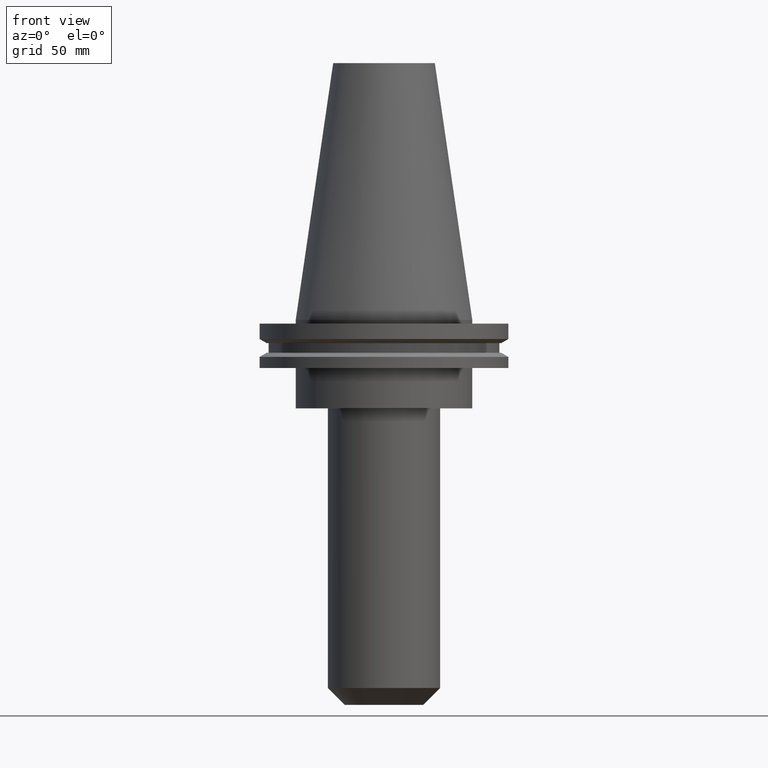
[diagram: clean part render]
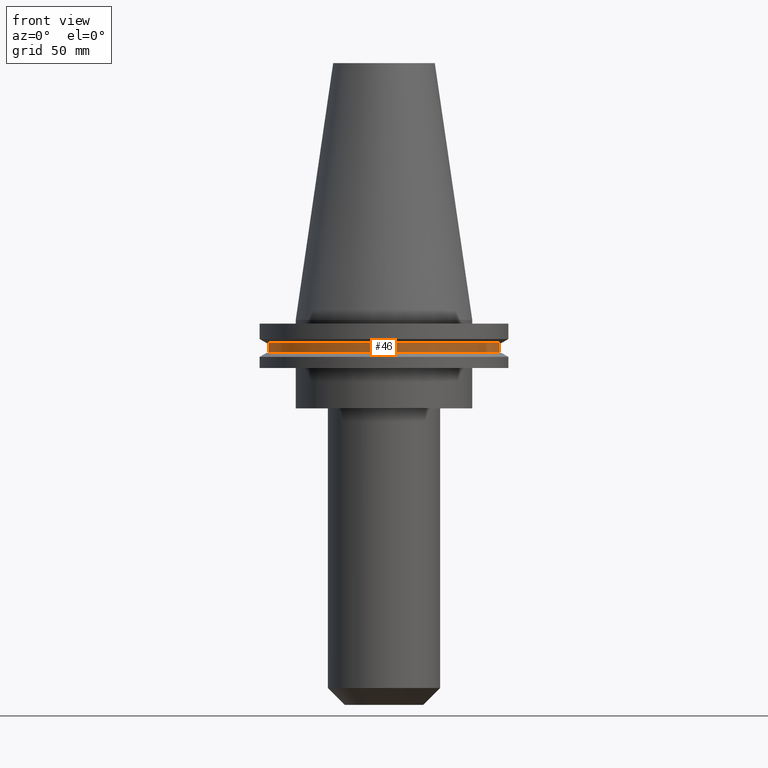
[diagram: same view with one face highlighted and labeled with its STEP entity id]
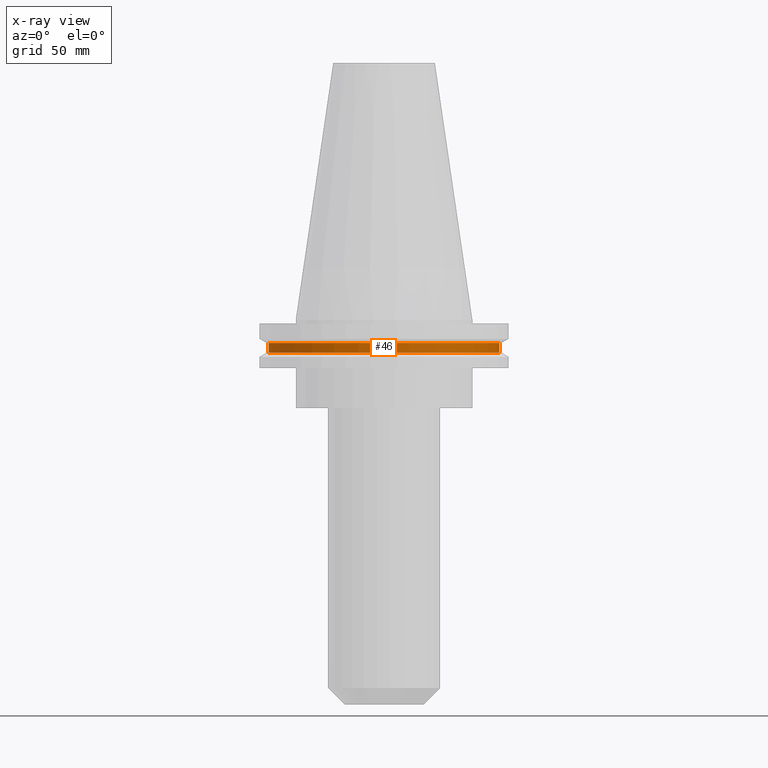
[diagram: x-ray of the same camera — body ghosted, the highlighted face saturated]
A machine part, front view. The second image highlights one B-rep face of the part: STEP entity #46.
The next image is the same camera in x-ray: the body ghosted, the highlighted face saturated — about 0% of this face is hidden behind the body in this view.
In plain terms, the highlighted cylindrical surface (partial cylindrical patch) has radius 45.645 mm, axis along (-0, -0, 1).
Its self-contained STEP definition (entity closure, byte-faithful):
#14 = EDGE_CURVE ( 'NONE', #303, #104, #426, .T. ) ;
#16 = CARTESIAN_POINT ( 'NONE',  ( 45.64500000000000313, 0.000000000000000000, 101.5999999999999943 ) ) ;
#42 = VERTEX_POINT ( 'NONE', #663 ) ;
#46 = ADVANCED_FACE ( 'NONE', ( #328 ), #671, .T. ) ;
#58 = CARTESIAN_POINT ( 'NONE',  ( 0.000000000000000000, 0.000000000000000000, -13.05499999999999794 ) ) ;
#76 = DIRECTION ( 'NONE',  ( -0.000000000000000000, -0.000000000000000000, 1.000000000000000000 ) ) ;
#104 = VERTEX_POINT ( 'NONE', #122 ) ;
#120 = VECTOR ( 'NONE', #598, 1000.000000000000000 ) ;
#122 = CARTESIAN_POINT ( 'NONE',  ( 45.64500000000000313, 0.000000000000000000, -9.204999999999991189 ) ) ;
#188 = DIRECTION ( 'NONE',  ( 1.000000000000000000, 0.000000000000000000, 0.000000000000000000 ) ) ;
#271 = ORIENTED_EDGE ( 'NONE', *, *, #14, .F. ) ;
#295 = VECTOR ( 'NONE', #809, 1000.000000000000000 ) ;
#303 = VERTEX_POINT ( 'NONE', #824 ) ;
#306 = ORIENTED_EDGE ( 'NONE', *, *, #499, .T. ) ;
#328 = FACE_OUTER_BOUND ( 'NONE', #763, .T. ) ;
#386 = CARTESIAN_POINT ( 'NONE',  ( 0.000000000000000000, 0.000000000000000000, 101.5999999999999943 ) ) ;
#401 = DIRECTION ( 'NONE',  ( 1.000000000000000000, 0.000000000000000000, 0.000000000000000000 ) ) ;
#426 = CIRCLE ( 'NONE', #770, 45.64500000000000313 ) ;
#464 = DIRECTION ( 'NONE',  ( -0.000000000000000000, -0.000000000000000000, 1.000000000000000000 ) ) ;
#473 = CARTESIAN_POINT ( 'NONE',  ( 0.000000000000000000, 0.000000000000000000, -9.204999999999991189 ) ) ;
#479 = CIRCLE ( 'NONE', #746, 45.64500000000000313 ) ;
#499 = EDGE_CURVE ( 'NONE', #42, #826, #479, .T. ) ;
#523 = LINE ( 'NONE', #800, #120 ) ;
#560 = ORIENTED_EDGE ( 'NONE', *, *, #834, .F. ) ;
#598 = DIRECTION ( 'NONE',  ( -0.000000000000000000, -0.000000000000000000, 1.000000000000000000 ) ) ;
#609 = LINE ( 'NONE', #16, #295 ) ;
#642 = AXIS2_PLACEMENT_3D ( 'NONE', #386, #658, #401 ) ;
#647 = EDGE_CURVE ( 'NONE', #826, #104, #609, .T. ) ;
#658 = DIRECTION ( 'NONE',  ( -0.000000000000000000, -0.000000000000000000, 1.000000000000000000 ) ) ;
#663 = CARTESIAN_POINT ( 'NONE',  ( -45.64500000000000313, 5.589900314708094957E-15, -13.05499999999999794 ) ) ;
#671 = CYLINDRICAL_SURFACE ( 'NONE', #642, 45.64500000000000313 ) ;
#746 = AXIS2_PLACEMENT_3D ( 'NONE', #58, #464, #853 ) ;
#763 = EDGE_LOOP ( 'NONE', ( #560, #306, #802, #271 ) ) ;
#770 = AXIS2_PLACEMENT_3D ( 'NONE', #473, #76, #188 ) ;
#800 = CARTESIAN_POINT ( 'NONE',  ( -45.64500000000000313, 5.589900314708094957E-15, 101.5999999999999943 ) ) ;
#802 = ORIENTED_EDGE ( 'NONE', *, *, #647, .T. ) ;
#809 = DIRECTION ( 'NONE',  ( -0.000000000000000000, -0.000000000000000000, 1.000000000000000000 ) ) ;
#824 = CARTESIAN_POINT ( 'NONE',  ( -45.64500000000000313, 5.589900314708094957E-15, -9.204999999999991189 ) ) ;
#826 = VERTEX_POINT ( 'NONE', #843 ) ;
#834 = EDGE_CURVE ( 'NONE', #42, #303, #523, .T. ) ;
#843 = CARTESIAN_POINT ( 'NONE',  ( 45.64500000000000313, 0.000000000000000000, -13.05499999999999794 ) ) ;
#853 = DIRECTION ( 'NONE',  ( 1.000000000000000000, 0.000000000000000000, 0.000000000000000000 ) ) ;